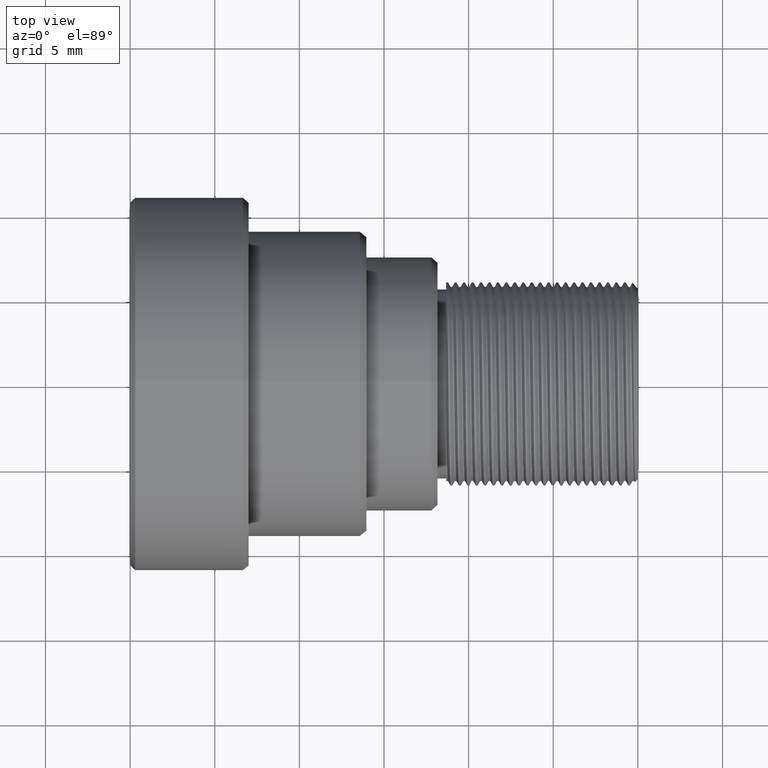
[diagram: clean part render]
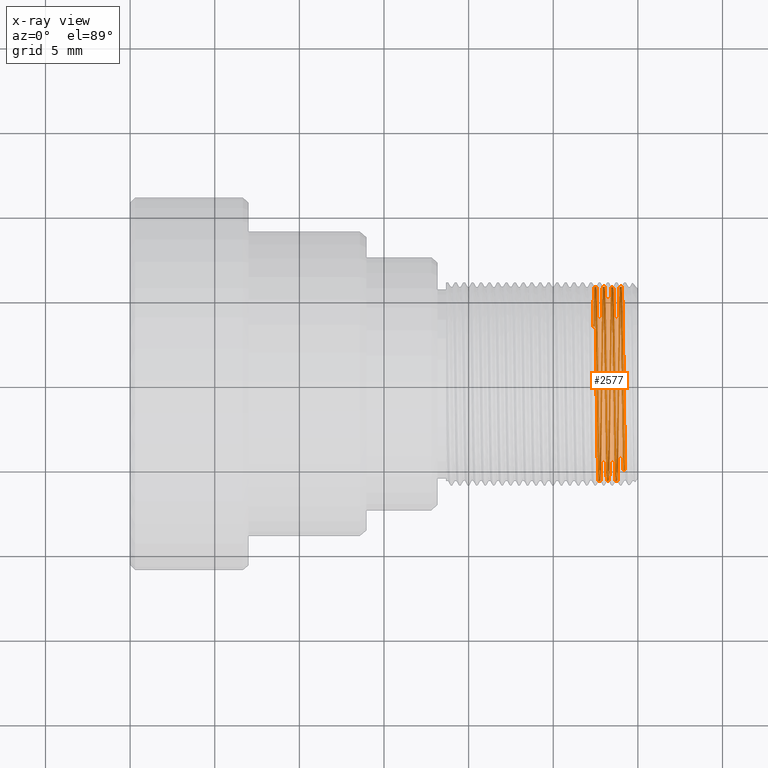
[diagram: x-ray — body ghosted, one internal face saturated and labeled with its STEP entity id]
A machine part, top view, then the same camera in x-ray: the body is ghosted and one INTERNAL B-rep face — a face not visible from any outside direction — is saturated and labeled: STEP entity #2577.
In plain terms, the highlighted face is a freeform B-spline surface patch.
Its self-contained STEP definition (entity closure, byte-faithful):
#22 = CARTESIAN_POINT ( 'NONE',  ( -1.393640370808000073, 5.622570896759000014, 1.682700512613999999 ) ) ;
#71 = CARTESIAN_POINT ( 'NONE',  ( -1.123047520445999981, 3.719522578722000095, -4.539816768457000329 ) ) ;
#114 = CARTESIAN_POINT ( 'NONE',  ( -1.706867475565299497, -5.804227592281000270, -0.8693253483180001240 ) ) ;
#115 = CARTESIAN_POINT ( 'NONE',  ( -1.955170055229999759, 5.468814845048000528, 2.129987956493999857 ) ) ;
#161 = CARTESIAN_POINT ( 'NONE',  ( -2.026246109133299278, 4.400040909953999879, -3.883867208719999908 ) ) ;
#162 = CARTESIAN_POINT ( 'NONE',  ( -2.448755216198000628, 5.279540565673999986, 2.563441831105000013 ) ) ;
#213 = CARTESIAN_POINT ( 'NONE',  ( -1.764936318031875118, -4.905808124757999877, 3.221464130994999842 ) ) ;
#214 = CARTESIAN_POINT ( 'NONE',  ( -2.477789637432000092, 5.846690975538000323, 0.5108780808056000433 ) ) ;
#260 = CARTESIAN_POINT ( 'NONE',  ( -2.055280530366444314, 2.724580928635999655, -5.198215392568999782 ) ) ;
#261 = CARTESIAN_POINT ( 'NONE',  ( -1.519653736728000082, 5.312649827899999622, -2.494100300777000179 ) ) ;
#307 = CARTESIAN_POINT ( 'NONE',  ( -1.010041365961258153, 5.094563060150999689, -2.913796789254000430 ) ) ;
#309 = CARTESIAN_POINT ( 'NONE',  ( -1.045819937732000104, 3.461940887852000603, 4.739171891942000059 ) ) ;
#322 = CARTESIAN_POINT ( 'NONE',  ( -0.9871584735384000275, 3.719522578722000095, -4.539816768457000329 ) ) ;
#359 = CARTESIAN_POINT ( 'NONE',  ( -1.616632681415000272, 4.073008135019001053, -4.225563777330999748 ) ) ;
#407 = CARTESIAN_POINT ( 'NONE',  ( -2.545734160884999930, 5.846690975538000323, 0.5108780808056000433 ) ) ;
#444 = VERTEX_POINT ( 'NONE', #4862 ) ;
#453 = CARTESIAN_POINT ( 'NONE',  ( -2.139252263617999805, 2.724580928636000099, -5.198215392568999782 ) ) ;
#496 = CARTESIAN_POINT ( 'NONE',  ( -2.184313894648409526, 0.6904281739478000945, -5.828215287792001043 ) ) ;
#498 = CARTESIAN_POINT ( 'NONE',  ( -1.500494996480999932, 4.652048971314999726, 3.578159425278999883 ) ) ;
#511 = CARTESIAN_POINT ( 'NONE',  ( -0.8129519461373000411, 1.543045258775000095, 5.662490082588999663 ) ) ;
#543 = CARTESIAN_POINT ( 'NONE',  ( -2.387554843282409411, -3.805546967878000952, 4.467952190680000157 ) ) ;
#545 = CARTESIAN_POINT ( 'NONE',  ( -2.003955838437000203, 0.6140636788212000541, 5.836755117579000007 ) ) ;
#558 = CARTESIAN_POINT ( 'NONE',  ( -1.364605949573999943, 4.652048971314999726, 3.578159425278999883 ) ) ;
#592 = CARTESIAN_POINT ( 'NONE',  ( -1.603625469978978924, 5.312649827899999622, -2.494100300777000179 ) ) ;
#607 = CARTESIAN_POINT ( 'NONE',  ( -1.596881319441999958, -3.746724585897000193, -4.517392985080999956 ) ) ;
#641 = CARTESIAN_POINT ( 'NONE',  ( -1.313281257643995170, -5.855380892527000114, -0.3991229229976000492 ) ) ;
#643 = CARTESIAN_POINT ( 'NONE',  ( -1.278095307599999897, -2.329551258181000062, -5.386833526268000050 ) ) ;
#655 = CARTESIAN_POINT ( 'NONE',  ( -0.9810069447276528187, 5.798901146949000385, -0.9041736523316999952 ) ) ;
#656 = CARTESIAN_POINT ( 'NONE',  ( -2.380810692744999901, 5.279540565673999986, 2.563441831105000013 ) ) ;
#691 = CARTESIAN_POINT ( 'NONE',  ( -2.532726949449409570, 5.279540565673999986, 2.563441831105000013 ) ) ;
#693 = CARTESIAN_POINT ( 'NONE',  ( -1.800714889803000096, -3.746724585897000193, -4.517392985080999956 ) ) ;
#704 = CARTESIAN_POINT ( 'NONE',  ( -2.119500901643999846, -4.863210958947999707, -3.285416818758999824 ) ) ;
#750 = CARTESIAN_POINT ( 'NONE',  ( -1.200275103160000079, -5.327535184241000366, -2.462144058519999845 ) ) ;
#796 = CARTESIAN_POINT ( 'NONE',  ( -0.8617377293440999786, -4.325063013458000150, 3.967200824738999820 ) ) ;
#800 = ORIENTED_EDGE ( 'NONE', *, *, #1508, .T. ) ;
#842 = CARTESIAN_POINT ( 'NONE',  ( -0.8648692597935253579, 1.543045258775000095, 5.662490082588999663 ) ) ;
#843 = CARTESIAN_POINT ( 'NONE',  ( -1.548688157961999989, 4.073008135019001053, -4.225563777330999748 ) ) ;
#890 = CARTESIAN_POINT ( 'NONE',  ( -2.534720364570382856, 3.890867311527279160, -4.253844025720928457 ) ) ;
#891 = CARTESIAN_POINT ( 'NONE',  ( -2.013238897697000152, 5.496232769577000354, -2.058205491894999906 ) ) ;
#941 = CARTESIAN_POINT ( 'NONE',  ( -1.329419999529858787, -1.047400271050999976, 5.774749966573000215 ) ) ;
#942 = CARTESIAN_POINT ( 'NONE',  ( -2.332617531264999933, -1.960808875505000159, 5.531727854785000176 ) ) ;
#986 = CARTESIAN_POINT ( 'NONE',  ( -1.561695369397444910, 2.297152388610999907, -5.400729155190999720 ) ) ;
#987 = CARTESIAN_POINT ( 'NONE',  ( -2.593927322364999899, 1.132099616667000097, -5.627446934828999936 ) ) ;
#1033 = CARTESIAN_POINT ( 'NONE',  ( -1.068110208428299623, 1.854804637051000071, -5.568167046921000285 ) ) ;
#1034 = CARTESIAN_POINT ( 'NONE',  ( -1.442426154013999984, 1.082068299821999924, 5.768354418613999890 ) ) ;
#1058 = CARTESIAN_POINT ( 'NONE',  ( -0.9067993603749382459, -2.624806938044000226, 5.249299836169000422 ) ) ;
#1082 = CARTESIAN_POINT ( 'NONE',  ( -1.384357311547000036, -3.038977944977999890, 5.020896090755999630 ) ) ;
#1095 = CARTESIAN_POINT ( 'NONE',  ( -0.6677798399697001397, -5.739740115829000011, 0.07205518104428000614 ) ) ;
#1130 = CARTESIAN_POINT ( 'NONE',  ( -2.226355527317999794, -3.370799333112000085, -4.804424664841000059 ) ) ;
#1175 = CARTESIAN_POINT ( 'NONE',  ( -2.371527633484999953, -3.805546967878000508, 4.467952190680000157 ) ) ;
#1220 = CARTESIAN_POINT ( 'NONE',  ( -1.893969682313979108, -3.433411868794999933, 4.759881032488999963 ) ) ;
#1222 = CARTESIAN_POINT ( 'NONE',  ( -2.574768582118999838, 5.644117296313999610, -1.608943808054000169 ) ) ;
#1233 = CARTESIAN_POINT ( 'NONE',  ( -0.6968142612033000338, -5.455922493532000317, 2.162766404199000014 ) ) ;
#1266 = CARTESIAN_POINT ( 'NONE',  ( -1.661694312445978650, 2.297152388610999907, -5.400729155190998831 ) ) ;
#1268 = CARTESIAN_POINT ( 'NONE',  ( -1.771680468569000189, -1.888217228073999943, -5.556925427232999759 ) ) ;
#1281 = CARTESIAN_POINT ( 'NONE',  ( -2.438879535212000071, 5.644117296313999610, -1.608943808054000169 ) ) ;
#1315 = CARTESIAN_POINT ( 'NONE',  ( -1.864935261080409523, -4.905808124757999877, 3.221464130994999842 ) ) ;
#1317 = CARTESIAN_POINT ( 'NONE',  ( -2.700781948038999847, 3.134282485578000266, -4.961947407538000121 ) ) ;
#1330 = CARTESIAN_POINT ( 'NONE',  ( -0.8228276271240000384, -2.624806938044000226, 5.249299836169000422 ) ) ;
#1364 = CARTESIAN_POINT ( 'NONE',  ( -1.458453363811554437, 1.082068299821999924, 5.768354418613999890 ) ) ;
#1366 = CARTESIAN_POINT ( 'NONE',  ( -1.394232992534000015, -5.612362065500000163, 1.716442993507999892 ) ) ;
#1378 = CARTESIAN_POINT ( 'NONE',  ( -1.538812476975000010, 0.2188751018982000029, -5.864885181654999613 ) ) ;
#1413 = CARTESIAN_POINT ( 'NONE',  ( -2.039141788481408923, 5.468814845048000528, 2.129987956493999857 ) ) ;
#1415 = CARTESIAN_POINT ( 'NONE',  ( -1.307129728832999938, -4.098316156345999772, -4.201022397804999642 ) ) ;
#1426 = CARTESIAN_POINT ( 'NONE',  ( -0.9389653120580000456, 4.925069843148000004, 3.191938512299000053 ) ) ;
#1462 = CARTESIAN_POINT ( 'NONE',  ( -2.671747526806000028, 4.698505451484000339, -3.516944551252000561 ) ) ;
#1473 = CARTESIAN_POINT ( 'NONE',  ( -0.7553575259468794378, -5.138700329564384717, 2.556266124406745721 ) ) ;
#1474 = CARTESIAN_POINT ( 'NONE',  ( -1.335571528340999903, 3.069081906205000543, 5.002551424745999675 ) ) ;
#1508 = EDGE_CURVE ( 'NONE', #1706, #3772, #2639, .T. ) ;
#1522 = CARTESIAN_POINT ( 'NONE',  ( -2.419720794964999921, 4.017336318637999781, 4.278527063759000271 ) ) ;
#1566 = CARTESIAN_POINT ( 'NONE',  ( -1.210150784145999969, -2.329551258181000062, -5.386833526268000050 ) ) ;
#1589 = CARTESIAN_POINT ( 'NONE',  ( -0.8555804595323310835, -5.138736985792783152, 2.556280895141534337 ) ) ;
#1613 = CARTESIAN_POINT ( 'NONE',  ( -1.300385578296299638, -3.038977944977999890, 5.020896090755999630 ) ) ;
#1615 = CARTESIAN_POINT ( 'NONE',  ( -2.071307740163999878, 2.724580928636000099, -5.198215392568999782 ) ) ;
#1640 = CARTESIAN_POINT ( 'NONE',  ( -0.8628758446721991326, -4.899922616385111063, 3.037234891230111256 ) ) ;
#1663 = CARTESIAN_POINT ( 'NONE',  ( -1.416523263230299756, 4.652048971314999726, 3.578159425278999883 ) ) ;
#1664 = CARTESIAN_POINT ( 'NONE',  ( -2.245514267564999944, -5.815111671174999941, 0.7932595765701999646 ) ) ;
#1706 = VERTEX_POINT ( 'NONE', #2751 ) ;
#1713 = CARTESIAN_POINT ( 'NONE',  ( -2.316590321467299596, -1.960808875505000159, 5.531727854785000176 ) ) ;
#1714 = CARTESIAN_POINT ( 'NONE',  ( -0.8907721505775999526, -2.624806938044000226, 5.249299836169000422 ) ) ;
#1761 = CARTESIAN_POINT ( 'NONE',  ( -2.345624742700875842, 0.1420709294929000110, 5.867248108233000359 ) ) ;
#1762 = CARTESIAN_POINT ( 'NONE',  ( -1.413391732780999943, -1.047400271050999976, 5.774749966573000215 ) ) ;
#1811 = CARTESIAN_POINT ( 'NONE',  ( -1.965045736216999961, 2.656290297955000046, 5.233441158284001027 ) ) ;
#1824 = CARTESIAN_POINT ( 'NONE',  ( -1.248468264640000047, -3.038977944977999890, 5.020896090755999630 ) ) ;
#1857 = CARTESIAN_POINT ( 'NONE',  ( -1.161957622666000001, 5.094563060150999689, -2.913796789253999986 ) ) ;
#1906 = CARTESIAN_POINT ( 'NONE',  ( -2.023114578683999909, 5.468814845048000528, 2.129987956493999857 ) ) ;
#1950 = CARTESIAN_POINT ( 'NONE',  ( -2.445623685749409137, 0.1420709294929000110, 5.867248108233001247 ) ) ;
#1952 = CARTESIAN_POINT ( 'NONE',  ( -1.016785516497999975, 1.543045258775000095, 5.662490082588999663 ) ) ;
#1994 = CARTESIAN_POINT ( 'NONE',  ( -1.081005887776000263, 5.798901146949000385, -0.9041736523316999952 ) ) ;
#1996 = CARTESIAN_POINT ( 'NONE',  ( -2.323334472004999984, -4.863210958947999707, -3.285416818758999824 ) ) ;
#2008 = CARTESIAN_POINT ( 'NONE',  ( -2.206604165343999835, -5.149282437005999746, 2.815967842276999811 ) ) ;
#2045 = CARTESIAN_POINT ( 'NONE',  ( -2.213348315881979111, -1.434619879141999954, -5.690927016454001119 ) ) ;
#2047 = CARTESIAN_POINT ( 'NONE',  ( -2.497540999406000051, 0.1420709294929000110, 5.867248108233000359 ) ) ;
#2052 = EDGE_LOOP ( 'NONE', ( #6638, #800, #4177, #2199 ) ) ;
#2060 = CARTESIAN_POINT ( 'NONE',  ( -2.496948377678000153, 3.134282485578000266, -4.961947407538000121 ) ) ;
#2096 = CARTESIAN_POINT ( 'NONE',  ( -2.634719307754191941, 3.890867304565183815, -4.253844032709098499 ) ) ;
#2098 = CARTESIAN_POINT ( 'NONE',  ( -2.468506578172000587, -1.960808875505000159, 5.531727854785000176 ) ) ;
#2111 = CARTESIAN_POINT ( 'NONE',  ( -1.422674792040999892, 5.852877867591000260, -0.4342869688220000191 ) ) ;
#2145 = CARTESIAN_POINT ( 'NONE',  ( -0.9648682028418565926, 1.543045258775000095, 5.662490082588999663 ) ) ;
#2147 = CARTESIAN_POINT ( 'NONE',  ( -1.539405098700999952, 3.069081906205000543, 5.002551424745999675 ) ) ;
#2160 = CARTESIAN_POINT ( 'NONE',  ( -1.084137418225999960, 1.854804637051000071, -5.568167046921000285 ) ) ;
#2195 = CARTESIAN_POINT ( 'NONE',  ( -1.858783732270000044, -5.804227592281000270, -0.8693253483180000130 ) ) ;
#2199 = ORIENTED_EDGE ( 'NONE', *, *, #4108, .T. ) ;
#2208 = CARTESIAN_POINT ( 'NONE',  ( -0.9679997332916000508, 5.739810292121999780, 1.224484513178000000 ) ) ;
#2253 = CARTESIAN_POINT ( 'NONE',  ( -0.7628769016237695322, -4.899922616385110175, 3.037234891230111256 ) ) ;
#2254 = CARTESIAN_POINT ( 'NONE',  ( -1.432550473028000093, 4.652048971314999726, 3.578159425278999883 ) ) ;
#2302 = CARTESIAN_POINT ( 'NONE',  ( -1.152081941679000021, 1.854804637051000071, -5.568167046921000285 ) ) ;
#2348 = CARTESIAN_POINT ( 'NONE',  ( -2.374659163934299766, 2.226246989797000086, 5.430341496316000161 ) ) ;
#2349 = CARTESIAN_POINT ( 'NONE',  ( -1.984204476464000111, 5.868842167586000969, 0.03842025770823000175 ) ) ;
#2400 = CARTESIAN_POINT ( 'NONE',  ( -1.213282314595858669, -5.855380892527000114, -0.3991229229976000492 ) ) ;
#2401 = CARTESIAN_POINT ( 'NONE',  ( -1.374481630560999923, 1.082068299821999924, 5.768354418613999890 ) ) ;
#2446 = CARTESIAN_POINT ( 'NONE',  ( -1.387488841996858291, 3.069081906205000543, 5.002551424745999675 ) ) ;
#2447 = CARTESIAN_POINT ( 'NONE',  ( -0.8036688868771000305, -5.739740115829000011, 0.07205518104428000614 ) ) ;
#2495 = CARTESIAN_POINT ( 'NONE',  ( -1.039075787194610356, 3.719522578722000095, -4.539816768457000329 ) ) ;
#2496 = CARTESIAN_POINT ( 'NONE',  ( -1.326288469080000310, -5.612362065500000163, 1.716442993507999892 ) ) ;
#2541 = CARTESIAN_POINT ( 'NONE',  ( -1.997211687899444810, 5.496232769577000354, -2.058205491894999906 ) ) ;
#2542 = CARTESIAN_POINT ( 'NONE',  ( -1.848908051283000065, -4.905808124757999877, 3.221464130994999842 ) ) ;
#2554 = CARTESIAN_POINT ( 'NONE',  ( -1.132330579705999929, -5.327535184241000366, -2.462144058519999845 ) ) ;
#2577 = ADVANCED_FACE ( 'NONE', ( #4927 ), #6245, .F. ) ;
#2589 = CARTESIAN_POINT ( 'NONE',  ( -2.632837424586000008, 3.134282485578000266, -4.961947407538000121 ) ) ;
#2634 = CARTESIAN_POINT ( 'NONE',  ( -2.255389948551000057, -4.863210958947999707, -3.285416818758999824 ) ) ;
#2639 = B_SPLINE_CURVE_WITH_KNOTS ( 'NONE', 3,
 ( #5007, #2096, #5833, #8758, #7931, #691, #3538, #6469, #1950, #7202, #543, #3588, #4170, #7983, #9435, #8032, #2045, #496, #4320, #5684, #8708, #4912, #1413, #4220, #7154, #8656, #5055, #1220, #1315, #4269, #3489, #3637, #2773, #5735, #7251, #1266, #6620, #592, #5785, #9582, #6520, #9484, #1364, #2822, #6571, #7300, #3047, #641, #5102, #3443, #6422, #8081, #9534, #9387, #4958, #1994, #2870, #8806, #4370, #2145, #7349, #1058, #6990, #1640, #1589 ),
 .UNSPECIFIED., .F., .F.,
 ( 4, 1, 1, 1, 1, 1, 1, 1, 1, 1, 1, 1, 1, 1, 1, 1, 1, 1, 1, 1, 1, 1, 1, 1, 1, 1, 1, 1, 1, 1, 1, 1, 1, 1, 1, 1, 1, 1, 1, 1, 1, 1, 1, 1, 1, 1, 1, 1, 1, 1, 1, 1, 1, 1, 1, 1, 1, 1, 1, 1, 1, 1, 4 ),
 ( 0.000000000000000000, 0.01249971172903806618, 0.02874972133996863202, 0.04499973095089920133, 0.06124974056182976717, 0.07749975017276045097, 0.09374975978369101681, 0.1099997693946215827, 0.1262497790055521485, 0.1424997886164827143, 0.1587497982274132802, 0.1749998078383438460, 0.1912498174492744119, 0.2074998270602050887, 0.2237498366711356546, 0.2399998462820662204, 0.2562498558929968140, 0.2724998655039273521, 0.2887498751148579457, 0.3049998847257884838, 0.3212498943367190773, 0.3374999039476497265, 0.3537499135584802890, 0.3699999231694108270, 0.3862499327803414206, 0.4024999423912719587, 0.4187499520022025523, 0.4349999616131332014, 0.4512499712240637950, 0.4674999808349943886, 0.4837499904459249267, 0.5000000000568555203, 0.5162500096677861139, 0.5325000192787165965, 0.5487500288896471901, 0.5650000385005778947, 0.5812500481115083772, 0.5975000577224389708, 0.6137500673333695644, 0.6300000769443001580, 0.6462500865552307516, 0.6625000961661612342, 0.6787501057770919388, 0.6950001153880224214, 0.7112501249989531260, 0.7275001346098834976, 0.7437501442208142022, 0.7600001538317447958, 0.7762501634426753894, 0.7925001730536059830, 0.8087501826645364655, 0.8250001922754671702, 0.8412502018863976527, 0.8575002114973283573, 0.8737502211082588399, 0.8900002307191894335, 0.9062502403301200271, 0.9225002499410506207, 0.9387502595519811033, 0.9550002691629116969, 0.9712502787738422905, 0.9875002883847729951, 1.000000000000000000 ),
 .UNSPECIFIED. ) ;
#2682 = CARTESIAN_POINT ( 'NONE',  ( -0.8716134103307000558, -5.739740115829000011, 0.07205518104428000614 ) ) ;
#2726 = CARTESIAN_POINT ( 'NONE',  ( -2.032990259671000111, 2.656290297955000046, 5.233441158284001027 ) ) ;
#2737 = CARTESIAN_POINT ( 'NONE',  ( -0.9290896310713999684, 5.798901146949000385, -0.9041736523316999952 ) ) ;
#2751 = CARTESIAN_POINT ( 'NONE',  ( -2.642195286700499857, 3.462764313516616621, -4.577997362663629666 ) ) ;
#2773 = CARTESIAN_POINT ( 'NONE',  ( -1.748797576146554622, -3.746724585897000193, -4.517392985080999956 ) ) ;
#2775 = CARTESIAN_POINT ( 'NONE',  ( -1.829749311035999915, -5.111973322315000345, -2.883142947576999848 ) ) ;
#2786 = CARTESIAN_POINT ( 'NONE',  ( -2.293707429044999913, 0.1420709294929000110, 5.867248108233000359 ) ) ;
#2822 = CARTESIAN_POINT ( 'NONE',  ( -1.429418942577995066, -1.047400271050999976, 5.774749966573000215 ) ) ;
#2824 = CARTESIAN_POINT ( 'NONE',  ( -1.945886995970000033, -3.433411868794999933, 4.759881032488999963 ) ) ;
#2835 = CARTESIAN_POINT ( 'NONE',  ( -0.8358348385600157249, -0.5789932257633999546, 5.840338913231000184 ) ) ;
#2836 = CARTESIAN_POINT ( 'NONE',  ( -1.887225531776999921, 5.468814845048000528, 2.129987956493999857 ) ) ;
#2870 = CARTESIAN_POINT ( 'NONE',  ( -1.051971466542494849, 5.739810292121999780, 1.224484513178000000 ) ) ;
#2872 = CARTESIAN_POINT ( 'NONE',  ( -1.916852574736999992, -4.905808124757999877, 3.221464130994999842 ) ) ;
#2883 = CARTESIAN_POINT ( 'NONE',  ( -0.9099308908244999605, 3.461940887852000603, 4.739171891942000059 ) ) ;
#2917 = CARTESIAN_POINT ( 'NONE',  ( -1.336164150067000067, -5.327535184241000366, -2.462144058519999845 ) ) ;
#2930 = CARTESIAN_POINT ( 'NONE',  ( -2.003363216709999950, 2.724580928636000099, -5.198215392568999782 ) ) ;
#2978 = CARTESIAN_POINT ( 'NONE',  ( -1.771087846843000024, -1.509004805446999997, 5.671656636413000108 ) ) ;
#3024 = CARTESIAN_POINT ( 'NONE',  ( -1.064978677979000032, 5.798901146949000385, -0.9041736523316999952 ) ) ;
#3047 = CARTESIAN_POINT ( 'NONE',  ( -1.342315678877554541, -5.612362065500000163, 1.716442993507999670 ) ) ;
#3070 = CARTESIAN_POINT ( 'NONE',  ( -1.590729790631299601, 0.2188751018982000029, -5.864885181654999613 ) ) ;
#3071 = CARTESIAN_POINT ( 'NONE',  ( -2.129376582631000048, -1.434619879141999954, -5.690927016454000231 ) ) ;
#3097 = LINE ( 'NONE', #3870, #4677 ) ;
#3118 = CARTESIAN_POINT ( 'NONE',  ( -1.184247893362299520, -5.327535184241000366, -2.462144058519999845 ) ) ;
#3119 = CARTESIAN_POINT ( 'NONE',  ( -1.461584894261000134, 5.622570896759000014, 1.682700512613999999 ) ) ;
#3168 = CARTESIAN_POINT ( 'NONE',  ( -1.358454420763299364, 1.082068299821999924, 5.768354418613999890 ) ) ;
#3169 = CARTESIAN_POINT ( 'NONE',  ( -2.506824058664999910, 5.644117296313999610, -1.608943808054000169 ) ) ;
#3214 = CARTESIAN_POINT ( 'NONE',  ( -2.517597676924762773, 4.771250561410054658, -3.370163687029762656 ) ) ;
#3216 = CARTESIAN_POINT ( 'NONE',  ( -0.9778754142782001280, 3.461940887852000603, 4.739171891942000059 ) ) ;
#3261 = CARTESIAN_POINT ( 'NONE',  ( -1.939142845432874962, 5.468814845048000528, 2.129987956493999857 ) ) ;
#3262 = CARTESIAN_POINT ( 'NONE',  ( -2.661871845818999827, 1.132099616667000097, -5.627446934828999936 ) ) ;
#3274 = CARTESIAN_POINT ( 'NONE',  ( -1.103296158472000021, -4.098316156345999772, -4.201022397804999642 ) ) ;
#3310 = CARTESIAN_POINT ( 'NONE',  ( -1.994080157450000224, 4.348814647710000258, 3.941141416404000175 ) ) ;
#3355 = CARTESIAN_POINT ( 'NONE',  ( -2.313458791017999783, -5.815111671174999941, 0.7932595765701999646 ) ) ;
#3401 = CARTESIAN_POINT ( 'NONE',  ( -0.8812915507419001315, -5.730976829613999790, 0.7701172039435000283 ) ) ;
#3443 = CARTESIAN_POINT ( 'NONE',  ( -1.255212415176978791, -4.098316156345999772, -4.201022397804999642 ) ) ;
#3445 = CARTESIAN_POINT ( 'NONE',  ( -2.062024680903999929, 4.348814647710000258, 3.941141416404000175 ) ) ;
#3458 = CARTESIAN_POINT ( 'NONE',  ( -0.8419863673709000462, 3.461940887852000603, 4.739171891942000059 ) ) ;
#3489 = CARTESIAN_POINT ( 'NONE',  ( -1.806866418613554570, -5.804227592281000270, -0.8693253483180000130 ) ) ;
#3491 = CARTESIAN_POINT ( 'NONE',  ( -2.352368893237999803, -5.715377838152000400, -1.333881805651000008 ) ) ;
#3504 = CARTESIAN_POINT ( 'NONE',  ( -2.235638586578000631, -3.805546967878000508, 4.467952190680000157 ) ) ;
#3538 = CARTESIAN_POINT ( 'NONE',  ( -2.503692528215978985, 4.017336318637999781, 4.278527063759000271 ) ) ;
#3552 = CARTESIAN_POINT ( 'NONE',  ( -1.683984583141999947, -5.732351690717999659, 1.258939473584000046 ) ) ;
#3557 = CARTESIAN_POINT ( 'NONE',  ( -0.7887653354053183463, -5.139282362589962183, 2.556553149659978263 ) ) ;
#3588 = CARTESIAN_POINT ( 'NONE',  ( -2.358520422048979270, -5.149282437005999746, 2.815967842276999811 ) ) ;
#3590 = CARTESIAN_POINT ( 'NONE',  ( -2.178162365838000269, 4.400040909953999879, -3.883867208719999908 ) ) ;
#3602 = CARTESIAN_POINT ( 'NONE',  ( -1.974328795476999909, 4.400040909953999879, -3.883867208719999908 ) ) ;
#3637 = CARTESIAN_POINT ( 'NONE',  ( -1.777831997379978990, -5.111973322315000345, -2.883142947576999404 ) ) ;
#3650 = CARTESIAN_POINT ( 'NONE',  ( -2.061432059177000120, -1.434619879141999954, -5.690927016454000231 ) ) ;
#3698 = CARTESIAN_POINT ( 'NONE',  ( -1.229309524392999897, -5.855380892527000114, -0.3991229229976000492 ) ) ;
#3746 = CARTESIAN_POINT ( 'NONE',  ( -1.006909835512000084, 4.925069843148000004, 3.191938512299000053 ) ) ;
#3772 = VERTEX_POINT ( 'NONE', #8578 ) ;
#3792 = CARTESIAN_POINT ( 'NONE',  ( -2.200452636533444917, -5.715377838152000400, -1.333881805651000008 ) ) ;
#3793 = CARTESIAN_POINT ( 'NONE',  ( -1.839032370296000085, -1.509004805446999997, 5.671656636413000108 ) ) ;
#3841 = CARTESIAN_POINT ( 'NONE',  ( -1.503626526930444740, 5.312649827899999622, -2.494100300777000179 ) ) ;
#3842 = CARTESIAN_POINT ( 'NONE',  ( -2.187445425098000218, -4.863210958947999707, -3.285416818758999824 ) ) ;
#3870 = CARTESIAN_POINT ( 'NONE',  ( -2.592164383329332633, 3.462731931933902274, -4.577955305267756181 ) ) ;
#3893 = CARTESIAN_POINT ( 'NONE',  ( -1.287378366860000067, -4.630472282846000098, 3.606038122653000055 ) ) ;
#3940 = CARTESIAN_POINT ( 'NONE',  ( -1.852039581732444651, 0.6140636788212000541, 5.836755117579000007 ) ) ;
#3941 = CARTESIAN_POINT ( 'NONE',  ( -1.490619315495000041, 5.852877867591000260, -0.4342869688220000191 ) ) ;
#3984 = CARTESIAN_POINT ( 'NONE',  ( -1.823005160498875066, -1.509004805446999997, 5.671656636413000108 ) ) ;
#3985 = CARTESIAN_POINT ( 'NONE',  ( -2.603803003352000101, 4.698505451484000339, -3.516944551252000561 ) ) ;
#4032 = CARTESIAN_POINT ( 'NONE',  ( -1.471460575248000113, 3.069081906205000543, 5.002551424745999675 ) ) ;
#4045 = CARTESIAN_POINT ( 'NONE',  ( -0.7258486824368001189, -4.325063013458000150, 3.967200824738999820 ) ) ;
#4081 = CARTESIAN_POINT ( 'NONE',  ( -1.190992043899000041, 3.719522578722000095, -4.539816768457000329 ) ) ;
#4108 = EDGE_CURVE ( 'NONE', #8182, #444, #5630, .T. ) ;
#4127 = CARTESIAN_POINT ( 'NONE',  ( -1.819873630050000024, -5.732351690717999659, 1.258939473584000046 ) ) ;
#4170 = CARTESIAN_POINT ( 'NONE',  ( -2.329486000815554458, -5.815111671174999941, 0.7932595765701999646 ) ) ;
#4172 = CARTESIAN_POINT ( 'NONE',  ( -0.9296822527978000350, -4.325063013458000150, 3.967200824738999820 ) ) ;
#4177 = ORIENTED_EDGE ( 'NONE', *, *, #5245, .T. ) ;
#4220 = CARTESIAN_POINT ( 'NONE',  ( -2.010107367247554233, 4.348814647710000258, 3.941141416404000175 ) ) ;
#4234 = CARTESIAN_POINT ( 'NONE',  ( -2.525982798912000504, 1.132099616667000097, -5.627446934828999936 ) ) ;
#4269 = CARTESIAN_POINT ( 'NONE',  ( -1.835900839846979160, -5.732351690717999659, 1.258939473584000046 ) ) ;
#4271 = CARTESIAN_POINT ( 'NONE',  ( -2.120093523371000099, 5.868842167586000969, 0.03842025770828000342 ) ) ;
#4285 = CARTESIAN_POINT ( 'NONE',  ( -1.742053425608999895, -3.433411868794999933, 4.759881032488999963 ) ) ;
#4320 = CARTESIAN_POINT ( 'NONE',  ( -2.155279473414978497, 2.724580928636000099, -5.198215392568999782 ) ) ;
#4322 = CARTESIAN_POINT ( 'NONE',  ( -1.510370677467999911, 1.082068299821999924, 5.768354418613999890 ) ) ;
#4333 = CARTESIAN_POINT ( 'NONE',  ( -0.9519725234940884517, 5.739810292121999780, 1.224484513178000000 ) ) ;
#4334 = CARTESIAN_POINT ( 'NONE',  ( -1.567846898208000050, -1.888217228073999943, -5.556925427232999759 ) ) ;
#4370 = CARTESIAN_POINT ( 'NONE',  ( -0.9939026240755649555, 3.461940887852000603, 4.739171891942000059 ) ) ;
#4372 = CARTESIAN_POINT ( 'NONE',  ( -2.207196787071000088, 2.724580928636000099, -5.198215392568999782 ) ) ;
#4384 = CARTESIAN_POINT ( 'NONE',  ( -1.277502685873999955, -1.047400271050999976, 5.774749966573000215 ) ) ;
#4421 = CARTESIAN_POINT ( 'NONE',  ( -1.742646047335999926, 0.2188751018982000029, -5.864885181654999613 ) ) ;
#4432 = CARTESIAN_POINT ( 'NONE',  ( -2.032397637943999857, 0.6904281739478000945, -5.828215287792001043 ) ) ;
#4478 = CARTESIAN_POINT ( 'NONE',  ( -1.577722579195000030, 2.297152388610999907, -5.400729155190999720 ) ) ;
#4483 = CARTESIAN_POINT ( 'NONE',  ( -0.8555804595323310835, -5.138736985792783152, 2.556280895141534337 ) ) ;
#4526 = CARTESIAN_POINT ( 'NONE',  ( -1.345447209327000015, -1.047400271050999976, 5.774749966573000215 ) ) ;
#4572 = CARTESIAN_POINT ( 'NONE',  ( -1.910108424199299604, 4.348814647710000258, 3.941141416404000175 ) ) ;
#4573 = CARTESIAN_POINT ( 'NONE',  ( -1.722894685363000056, -5.804227592281000270, -0.8693253483180000130 ) ) ;
#4621 = CARTESIAN_POINT ( 'NONE',  ( -1.474592105697299482, 5.852877867591000260, -0.4342869688220000191 ) ) ;
#4622 = CARTESIAN_POINT ( 'NONE',  ( -2.274548688798000207, -5.149282437005999746, 2.815967842276999811 ) ) ;
#4671 = CARTESIAN_POINT ( 'NONE',  ( -2.542134405216384341, 3.462763606985000742, -4.577997801655666166 ) ) ;
#4672 = CARTESIAN_POINT ( 'NONE',  ( -0.9198065718111001488, -0.5789932257633999546, 5.840338913231000184 ) ) ;
#4677 = VECTOR ( 'NONE', #6064, 1000.000000000000000 ) ;
#4725 = CARTESIAN_POINT ( 'NONE',  ( -2.197321106084999975, -1.434619879141999954, -5.690927016454000231 ) ) ;
#4737 = CARTESIAN_POINT ( 'NONE',  ( -1.045227316005000073, -0.2540994883862999765, -5.863464671530000949 ) ) ;
#4771 = CARTESIAN_POINT ( 'NONE',  ( -1.297254047847000047, -5.855380892527000114, -0.3991229229976000492 ) ) ;
#4820 = CARTESIAN_POINT ( 'NONE',  ( -1.703735945115999906, -1.888217228073999943, -5.556925427232999759 ) ) ;
#4862 = CARTESIAN_POINT ( 'NONE',  ( -2.542134405216384341, 3.462763606985000742, -4.577997801655666166 ) ) ;
#4869 = CARTESIAN_POINT ( 'NONE',  ( -2.284424369784999964, -5.715377838152000400, -1.333881805651000008 ) ) ;
#4912 = CARTESIAN_POINT ( 'NONE',  ( -2.068176209714554403, 5.868842167586000969, 0.03842025770827191961 ) ) ;
#4914 = CARTESIAN_POINT ( 'NONE',  ( -1.239185205380000099, -4.098316156345999772, -4.201022397804999642 ) ) ;
#4927 = FACE_OUTER_BOUND ( 'NONE', #2052, .T. ) ;
#4958 = CARTESIAN_POINT ( 'NONE',  ( -1.110040309009552972, 5.094563060150999689, -2.913796789254000430 ) ) ;
#4972 = CARTESIAN_POINT ( 'NONE',  ( -1.509778055741000102, 2.297152388610999907, -5.400729155190999720 ) ) ;
#5007 = CARTESIAN_POINT ( 'NONE',  ( -2.642195286700499857, 3.462764313516616621, -4.577997362663629666 ) ) ;
#5009 = CARTESIAN_POINT ( 'NONE',  ( -2.555609841872000132, 4.017336318637999781, 4.278527063759000271 ) ) ;
#5021 = CARTESIAN_POINT ( 'NONE',  ( -0.7647587846568999481, -5.455922493532000317, 2.162766404199000014 ) ) ;
#5055 = CARTESIAN_POINT ( 'NONE',  ( -1.923004103547409249, -1.509004805446999997, 5.671656636413000108 ) ) ;
#5057 = CARTESIAN_POINT ( 'NONE',  ( -1.220026465132999949, 1.854804637051000071, -5.568167046921000285 ) ) ;
#5070 = CARTESIAN_POINT ( 'NONE',  ( -0.7357243634233999741, -5.739740115829000011, 0.07205518104428000614 ) ) ;
#5102 = CARTESIAN_POINT ( 'NONE',  ( -1.284246836410554371, -5.327535184241000366, -2.462144058519999845 ) ) ;
#5104 = CARTESIAN_POINT ( 'NONE',  ( -1.568439519935000082, 4.652048971314999726, 3.578159425278999883 ) ) ;
#5116 = CARTESIAN_POINT ( 'NONE',  ( -1.480743634508000062, 4.073008135019001053, -4.225563777330999748 ) ) ;
#5164 = CARTESIAN_POINT ( 'NONE',  ( -1.055102996992000053, 3.719522578722000095, -4.539816768457000329 ) ) ;
#5211 = CARTESIAN_POINT ( 'NONE',  ( -2.158411003864000310, -3.370799333112000085, -4.804424664841000059 ) ) ;
#5245 = EDGE_CURVE ( 'NONE', #3772, #8182, #6275, .T. ) ;
#5259 = CARTESIAN_POINT ( 'NONE',  ( -1.181116362912999929, -0.2540994883862999765, -5.863464671530000949 ) ) ;
#5308 = CARTESIAN_POINT ( 'NONE',  ( -2.461762427634299755, 5.846690975538000323, 0.5108780808056000433 ) ) ;
#5309 = CARTESIAN_POINT ( 'NONE',  ( -1.780963527828999915, -4.905808124757999877, 3.221464130994999842 ) ) ;
#5356 = CARTESIAN_POINT ( 'NONE',  ( -1.242316735829299690, -5.612362065500000163, 1.716442993507999892 ) ) ;
#5358 = CARTESIAN_POINT ( 'NONE',  ( -1.635791421661999978, -1.888217228073999943, -5.556925427232999759 ) ) ;
#5403 = CARTESIAN_POINT ( 'NONE',  ( -1.271351157062858839, -4.630472282846000098, 3.606038122653000055 ) ) ;
#5404 = CARTESIAN_POINT ( 'NONE',  ( -0.8133470272881999641, -5.730976829613999790, 0.7701172039435000283 ) ) ;
#5431 = CARTESIAN_POINT ( 'NONE',  ( -0.7553575259468794378, -5.138700329564384717, 2.556266124406745721 ) ) ;
#5447 = CARTESIAN_POINT ( 'NONE',  ( -1.126179050895299572, -2.329551258181000062, -5.386833526268000050 ) ) ;
#5448 = CARTESIAN_POINT ( 'NONE',  ( -2.516699739652000112, 5.279540565673999986, 2.563441831105000013 ) ) ;
#5497 = CARTESIAN_POINT ( 'NONE',  ( -1.097144629661444659, -0.2540994883862999765, -5.863464671530000949 ) ) ;
#5498 = CARTESIAN_POINT ( 'NONE',  ( -1.906976893750000013, -1.509004805446999997, 5.671656636413000108 ) ) ;
#5510 = CARTESIAN_POINT ( 'NONE',  ( -1.074261737238999981, -2.329551258181000062, -5.386833526268000050 ) ) ;
#5545 = CARTESIAN_POINT ( 'NONE',  ( -1.587598260182000010, 5.312649827899999622, -2.494100300777000179 ) ) ;
#5591 = CARTESIAN_POINT ( 'NONE',  ( -1.674701523881999998, 0.2188751018982000029, -5.864885181654999613 ) ) ;
#5630 = B_SPLINE_CURVE_WITH_KNOTS ( 'NONE', 3,
 ( #1473, #2253, #6725, #9547, #2835, #842, #6533, #8771, #4333, #655, #307, #2495, #1033, #5497, #5447, #6966, #3118, #2400, #5356, #5403, #1613, #941, #3168, #2446, #1663, #6771, #4621, #3841, #7649, #986, #3070, #9157, #8473, #6872, #114, #6136, #213, #6919, #3984, #3940, #6087, #4572, #3261, #9058, #2541, #161, #260, #9106, #6232, #7552, #6036, #3792, #8380, #7602, #9007, #1713, #1761, #2348, #9204, #8333, #5308, #8285, #3214, #890, #4671 ),
 .UNSPECIFIED., .F., .F.,
 ( 4, 1, 1, 1, 1, 1, 1, 1, 1, 1, 1, 1, 1, 1, 1, 1, 1, 1, 1, 1, 1, 1, 1, 1, 1, 1, 1, 1, 1, 1, 1, 1, 1, 1, 1, 1, 1, 1, 1, 1, 1, 1, 1, 1, 1, 1, 1, 1, 1, 1, 1, 1, 1, 1, 1, 1, 1, 1, 1, 1, 1, 1, 4 ),
 ( 0.000000000000000000, 0.01249971161664799324, 0.02874972122942582448, 0.04499973084220365571, 0.06124974045498148695, 0.07749975006775931818, 0.09374975968053714248, 0.1099997692933149807, 0.1262497789060927911, 0.1424997885188706015, 0.1587497981316484397, 0.1749998077444262778, 0.1912498173572041160, 0.2074998269699819264, 0.2237498365827597646, 0.2399998461955376028, 0.2562498558083154410, 0.2724998654210932791, 0.2887498750338711173, 0.3049998846466489555, 0.3212498942594267382, 0.3374999038722046318, 0.3537499134849824700, 0.3699999230977602527, 0.3862499327105380909, 0.4024999423233159290, 0.4187499519360937672, 0.4349999615488716054, 0.4512499711616493880, 0.4674999807744272817, 0.4837499903872050644, 0.4999999999999829026, 0.5162500096127606852, 0.5325000192255385789, 0.5487500288383163616, 0.5650000384510941442, 0.5812500480638721490, 0.5975000576766499316, 0.6137500672894277143, 0.6300000769022054969, 0.6462500865149833906, 0.6625000961276611422, 0.6787501057404390359, 0.6950001153532169296, 0.7112501249659947122, 0.7275001345787724949, 0.7437501441915503886, 0.7600001538043281712, 0.7762501634171059539, 0.7925001730298837366, 0.8087501826426617413, 0.8250001922554395239, 0.8412502018682173066, 0.8575002114809952003, 0.8737502210937729830, 0.8900002307065507656, 0.9062502403193286593, 0.9225002499321064420, 0.9387502595448843357, 0.9550002691576622293, 0.9712502787704400120, 0.9875002883832177947, 1.000000000000000000 ),
 .UNSPECIFIED. ) ;
#5640 = CARTESIAN_POINT ( 'NONE',  ( -2.081183421151000079, 5.496232769577000354, -2.058205491894999906 ) ) ;
#5684 = CARTESIAN_POINT ( 'NONE',  ( -2.126245052181554129, 4.400040909953999879, -3.883867208719999908 ) ) ;
#5686 = CARTESIAN_POINT ( 'NONE',  ( -2.410437735704999973, -5.149282437005999746, 2.815967842276999811 ) ) ;
#5699 = CARTESIAN_POINT ( 'NONE',  ( -0.9581240523049000535, 5.094563060150999689, -2.913796789253999986 ) ) ;
#5735 = CARTESIAN_POINT ( 'NONE',  ( -1.719763154912979042, -1.888217228073999943, -5.556925427232999759 ) ) ;
#5737 = CARTESIAN_POINT ( 'NONE',  ( -2.642713105573000210, 5.644117296313999610, -1.608943808054000169 ) ) ;
#5749 = CARTESIAN_POINT ( 'NONE',  ( -1.451709213274000154, 5.312649827899999622, -2.494100300777000179 ) ) ;
#5785 = CARTESIAN_POINT ( 'NONE',  ( -1.574591048745554556, 5.852877867591000260, -0.4342869688220000191 ) ) ;
#5787 = CARTESIAN_POINT ( 'NONE',  ( -2.091059102137999837, 5.468814845048000528, 2.129987956493999857 ) ) ;
#5799 = CARTESIAN_POINT ( 'NONE',  ( -2.090466480411000028, -3.370799333112000085, -4.804424664841000059 ) ) ;
#5833 = CARTESIAN_POINT ( 'NONE',  ( -2.617596620040742117, 4.771250559205047814, -3.370163691478896606 ) ) ;
#5835 = CARTESIAN_POINT ( 'NONE',  ( -1.684577204868999978, 4.073008135019001053, -4.225563777330999748 ) ) ;
#5847 = CARTESIAN_POINT ( 'NONE',  ( -1.026068575759000012, 5.094563060150999689, -2.913796789253999986 ) ) ;
#5883 = CARTESIAN_POINT ( 'NONE',  ( -1.974921417203999718, -1.509004805446999997, 5.671656636413000108 ) ) ;
#5896 = CARTESIAN_POINT ( 'NONE',  ( -2.177569744111000016, -5.815111671174999941, 0.7932595765701999646 ) ) ;
#5942 = CARTESIAN_POINT ( 'NONE',  ( -1.858191110543000013, 4.348814647710000258, 3.941141416404000175 ) ) ;
#5990 = CARTESIAN_POINT ( 'NONE',  ( -1.606757000428999937, 0.2188751018982000029, -5.864885181654999613 ) ) ;
#6036 = CARTESIAN_POINT ( 'NONE',  ( -2.171418215300299881, -4.863210958947999707, -3.285416818758999824 ) ) ;
#6037 = CARTESIAN_POINT ( 'NONE',  ( -1.693860264128999926, -5.111973322315000345, -2.883142947576999848 ) ) ;
#6064 = DIRECTION ( 'NONE',  ( 1.000000000000000000, -0.000000000000000000, -0.000000000000000000 ) ) ;
#6087 = CARTESIAN_POINT ( 'NONE',  ( -1.881074002965874792, 2.656290297955000046, 5.233441158284001027 ) ) ;
#6088 = CARTESIAN_POINT ( 'NONE',  ( -1.403516051793999964, 3.069081906205000543, 5.002551424745999675 ) ) ;
#6136 = CARTESIAN_POINT ( 'NONE',  ( -1.735901896798444755, -5.732351690717999659, 1.258939473584000046 ) ) ;
#6137 = CARTESIAN_POINT ( 'NONE',  ( -2.535858479898999818, 4.698505451484000339, -3.516944551252000561 ) ) ;
#6185 = CARTESIAN_POINT ( 'NONE',  ( -1.761804787583000076, -5.111973322315000345, -2.883142947576999848 ) ) ;
#6232 = CARTESIAN_POINT ( 'NONE',  ( -2.113349372833444484, -1.434619879141999954, -5.690927016454000231 ) ) ;
#6233 = CARTESIAN_POINT ( 'NONE',  ( -1.132923201432000093, 5.798901146949000385, -0.9041736523316999952 ) ) ;
#6245 = B_SPLINE_SURFACE_WITH_KNOTS ( 'NONE', 3, 3, ( 
 ( #1095, #7900, #1233, #4045, #7030, #7169, #511, #3458, #9401, #6438, #2737, #5699, #322, #8671, #4737, #5510, #3274, #2554, #6248, #9217, #8486, #1824, #4384, #6585, #1474, #558, #22, #2111, #5749, #5116, #4972, #1378, #4334, #607, #6679, #7266, #3552, #7313, #4285, #2978, #6534, #8821, #5942, #2836, #9498, #6483, #3602, #2930, #4432, #3650, #5799, #704, #9449, #5896, #2008, #3504, #7998, #2786, #8094, #8722, #656, #8868, #1281, #9548, #2060, #8772, #4234 ),
 ( #5070, #9598, #5021, #7946, #1330, #7364, #8047, #2883, #1426, #2208, #7413, #5847, #5164, #2160, #7217, #6634, #8144, #750, #3698, #9059, #3893, #7506, #4526, #2401, #6088, #2254, #3119, #3941, #261, #843, #4478, #5990, #5358, #7457, #6037, #4573, #6873, #5309, #6772, #3793, #8334, #9008, #7603, #115, #2349, #891, #8286, #1615, #7553, #3071, #5211, #3842, #8963, #1664, #4622, #8190, #942, #6920, #6823, #1522, #162, #214, #3169, #6137, #9108, #8235, #987 ),
 ( #2447, #5404, #8381, #796, #1714, #4672, #7650, #3216, #3746, #8916, #3024, #6726, #71, #2302, #5259, #1566, #4914, #7888, #4771, #2496, #7742, #1082, #1762, #1034, #4032, #498, #7016, #9205, #5545, #359, #7156, #5591, #4820, #8428, #6185, #8474, #4127, #2542, #9158, #5498, #8566, #1811, #3310, #1906, #7110, #5640, #7064, #453, #7697, #4725, #1130, #2634, #4869, #3355, #6333, #1175, #6284, #9252, #9299, #7840, #5448, #407, #1222, #3985, #2589, #6967, #3262 ),
 ( #2682, #3401, #6379, #4172, #9344, #8613, #1952, #309, #8520, #7793, #6233, #1857, #4081, #5057, #6622, #643, #1415, #2917, #7933, #1366, #9389, #7253, #9536, #4322, #2147, #5104, #7302, #9486, #8034, #5835, #7204, #4421, #1268, #693, #2775, #2195, #9437, #2872, #2824, #5883, #545, #2726, #3445, #5787, #4271, #8658, #3590, #4372, #6425, #8855, #8710, #1996, #3491, #6573, #5686, #8760, #2098, #2047, #8132, #5009, #7985, #8808, #5737, #1462, #1317, #8083, #7401 ) ),
 .UNSPECIFIED., .F., .F., .F.,
 ( 4, 4 ),
 ( 4, 1, 1, 1, 1, 1, 1, 1, 1, 1, 1, 1, 1, 1, 1, 1, 1, 1, 1, 1, 1, 1, 1, 1, 1, 1, 1, 1, 1, 1, 1, 1, 1, 1, 1, 1, 1, 1, 1, 1, 1, 1, 1, 1, 1, 1, 1, 1, 1, 1, 1, 1, 1, 1, 1, 1, 1, 1, 1, 1, 1, 1, 1, 1, 4 ),
 ( -0.5191678518048999935, 1.519167851805000025 ),
 ( -0.01999999999999000147, -0.003749999999996000023, 0.01250000000000000069, 0.02875000000000000125, 0.04499999999999999833, 0.06124999999999999889, 0.07749999999999999944, 0.09375000000000000000, 0.1100000000000000006, 0.1262500000000000011, 0.1424999999999999878, 0.1587500000000000022, 0.1749999999999999889, 0.1912500000000000033, 0.2074999999999999900, 0.2237500000000000044, 0.2399999999999999911, 0.2562499999999999778, 0.2725000000000000200, 0.2887500000000000067, 0.3049999999999999933, 0.3212499999999999800, 0.3375000000000000222, 0.3537500000000000089, 0.3699999999999999956, 0.3862499999999999822, 0.4025000000000000244, 0.4187500000000000111, 0.4349999999999999978, 0.4512499999999999845, 0.4675000000000000266, 0.4837500000000000133, 0.5000000000000000000, 0.5162499999999999867, 0.5324999999999999734, 0.5487499999999999600, 0.5649999999999999467, 0.5812500000000000444, 0.5975000000000000311, 0.6137500000000000178, 0.6300000000000000044, 0.6462499999999999911, 0.6624999999998999467, 0.6787499999999000444, 0.6949999999999000311, 0.7112499999999000178, 0.7274999999999000044, 0.7437499999998999911, 0.7599999999998999778, 0.7762499999998999645, 0.7924999999998999511, 0.8087499999999000488, 0.8249999999999000355, 0.8412499999999000222, 0.8574999999999000089, 0.8737499999998999956, 0.8899999999998999822, 0.9062499999998999689, 0.9224999999998999556, 0.9387499999999000533, 0.9549999999999000400, 0.9712499999999000266, 0.9874999999999000133, 1.003749999999999920, 1.020000000000000018 ),
 .UNSPECIFIED. ) ;
#6248 = CARTESIAN_POINT ( 'NONE',  ( -1.161365000940000280, -5.855380892527000114, -0.3991229229976000492 ) ) ;
#6275 = B_SPLINE_CURVE_WITH_KNOTS ( 'NONE', 3,
 ( #4483, #8003, #3557, #9014 ),
 .UNSPECIFIED., .F., .F.,
 ( 4, 4 ),
 ( 0.000000000000000000, 1.000000000000000000 ),
 .UNSPECIFIED. ) ;
#6284 = CARTESIAN_POINT ( 'NONE',  ( -2.400562054718000216, -1.960808875505000159, 5.531727854785000176 ) ) ;
#6333 = CARTESIAN_POINT ( 'NONE',  ( -2.342493212252000134, -5.149282437005999746, 2.815967842276999811 ) ) ;
#6379 = CARTESIAN_POINT ( 'NONE',  ( -0.9006478315642000299, -5.455922493532000317, 2.162766404199000014 ) ) ;
#6422 = CARTESIAN_POINT ( 'NONE',  ( -1.226177993943554423, -2.329551258181000062, -5.386833526268000050 ) ) ;
#6425 = CARTESIAN_POINT ( 'NONE',  ( -2.236231208304999996, 0.6904281739478000945, -5.828215287792001043 ) ) ;
#6438 = CARTESIAN_POINT ( 'NONE',  ( -0.9000552098378999943, 5.739810292121999780, 1.224484513178000000 ) ) ;
#6469 = CARTESIAN_POINT ( 'NONE',  ( -2.474658106982555061, 2.226246989797000086, 5.430341496316000161 ) ) ;
#6483 = CARTESIAN_POINT ( 'NONE',  ( -1.945294374243000002, 5.496232769577000354, -2.058205491894999906 ) ) ;
#6520 = CARTESIAN_POINT ( 'NONE',  ( -1.516522206278554386, 4.652048971314999726, 3.578159425279000327 ) ) ;
#6533 = CARTESIAN_POINT ( 'NONE',  ( -0.8939036810270749589, 3.461940887852000603, 4.739171891942000059 ) ) ;
#6534 = CARTESIAN_POINT ( 'NONE',  ( -1.800122268076000065, 0.6140636788212000541, 5.836755117579000007 ) ) ;
#6571 = CARTESIAN_POINT ( 'NONE',  ( -1.400384521344554489, -3.038977944977999446, 5.020896090755999630 ) ) ;
#6573 = CARTESIAN_POINT ( 'NONE',  ( -2.381403314472000154, -5.815111671174999941, 0.7932595765701999646 ) ) ;
#6585 = CARTESIAN_POINT ( 'NONE',  ( -1.306537107107000217, 1.082068299821999924, 5.768354418613999890 ) ) ;
#6620 = CARTESIAN_POINT ( 'NONE',  ( -1.632659891212554726, 4.073008135019001053, -4.225563777330999748 ) ) ;
#6622 = CARTESIAN_POINT ( 'NONE',  ( -1.249060886365999989, -0.2540994883862999765, -5.863464671530000949 ) ) ;
#6634 = CARTESIAN_POINT ( 'NONE',  ( -1.142206260692999908, -2.329551258181000062, -5.386833526268000050 ) ) ;
#6638 = ORIENTED_EDGE ( 'NONE', *, *, #8345, .F. ) ;
#6679 = CARTESIAN_POINT ( 'NONE',  ( -1.625915740674999999, -5.111973322315000345, -2.883142947576999848 ) ) ;
#6725 = CARTESIAN_POINT ( 'NONE',  ( -0.7799995892695421595, -4.194263768729913799, 4.065831604411901168 ) ) ;
#6726 = CARTESIAN_POINT ( 'NONE',  ( -1.094013099212000073, 5.094563060150999689, -2.913796789253999986 ) ) ;
#6771 = CARTESIAN_POINT ( 'NONE',  ( -1.445557684463858461, 5.622570896759000014, 1.682700512613999999 ) ) ;
#6772 = CARTESIAN_POINT ( 'NONE',  ( -1.809997949063000044, -3.433411868794999933, 4.759881032488999963 ) ) ;
#6823 = CARTESIAN_POINT ( 'NONE',  ( -2.390686373732000103, 2.226246989797000086, 5.430341496316000161 ) ) ;
#6872 = CARTESIAN_POINT ( 'NONE',  ( -1.677833054331444362, -5.111973322315000345, -2.883142947576999848 ) ) ;
#6873 = CARTESIAN_POINT ( 'NONE',  ( -1.751929106596000096, -5.732351690717999659, 1.258939473584000046 ) ) ;
#6919 = CARTESIAN_POINT ( 'NONE',  ( -1.793970739265444703, -3.433411868794999489, 4.759881032488999963 ) ) ;
#6920 = CARTESIAN_POINT ( 'NONE',  ( -2.361651952498000195, 0.1420709294929000110, 5.867248108233000359 ) ) ;
#6966 = CARTESIAN_POINT ( 'NONE',  ( -1.155213472128444607, -4.098316156345999772, -4.201022397804999642 ) ) ;
#6967 = CARTESIAN_POINT ( 'NONE',  ( -2.652193705408000035, 1.816504644042999939, -5.489761999171999918 ) ) ;
#6990 = CARTESIAN_POINT ( 'NONE',  ( -0.8799985323179905228, -4.194263768729913799, 4.065831604411901168 ) ) ;
#7016 = CARTESIAN_POINT ( 'NONE',  ( -1.529529417715000061, 5.622570896759000014, 1.682700512613999999 ) ) ;
#7030 = CARTESIAN_POINT ( 'NONE',  ( -0.7548831036702999819, -2.624806938044000226, 5.249299836169000422 ) ) ;
#7064 = CARTESIAN_POINT ( 'NONE',  ( -2.110217842383999898, 4.400040909953999879, -3.883867208719999908 ) ) ;
#7110 = CARTESIAN_POINT ( 'NONE',  ( -2.052148999917000172, 5.868842167586000969, 0.03842025770828000342 ) ) ;
#7154 = CARTESIAN_POINT ( 'NONE',  ( -1.981072946014409641, 2.656290297955000046, 5.233441158284001027 ) ) ;
#7156 = CARTESIAN_POINT ( 'NONE',  ( -1.645667102648999958, 2.297152388610999907, -5.400729155190999720 ) ) ;
#7169 = CARTESIAN_POINT ( 'NONE',  ( -0.7839175249037999560, -0.5789932257633999546, 5.840338913231000184 ) ) ;
#7202 = CARTESIAN_POINT ( 'NONE',  ( -2.416589264515554447, -1.960808875505000159, 5.531727854785000176 ) ) ;
#7204 = CARTESIAN_POINT ( 'NONE',  ( -1.713611626102000018, 2.297152388610999907, -5.400729155190999720 ) ) ;
#7217 = CARTESIAN_POINT ( 'NONE',  ( -1.113171839459000001, -0.2540994883862999765, -5.863464671530000949 ) ) ;
#7251 = CARTESIAN_POINT ( 'NONE',  ( -1.690728733679554674, 0.2188751018982000029, -5.864885181654998725 ) ) ;
#7253 = CARTESIAN_POINT ( 'NONE',  ( -1.452301835000999963, -3.038977944977999890, 5.020896090755999630 ) ) ;
#7266 = CARTESIAN_POINT ( 'NONE',  ( -1.654950161908999906, -5.804227592281000270, -0.8693253483180000130 ) ) ;
#7300 = CARTESIAN_POINT ( 'NONE',  ( -1.371350100110995118, -4.630472282846000098, 3.606038122653000055 ) ) ;
#7302 = CARTESIAN_POINT ( 'NONE',  ( -1.597473941167999900, 5.622570896759000014, 1.682700512613999999 ) ) ;
#7313 = CARTESIAN_POINT ( 'NONE',  ( -1.713019004376000076, -4.905808124757999877, 3.221464130994999842 ) ) ;
#7349 = CARTESIAN_POINT ( 'NONE',  ( -0.9358337816084383309, -0.5789932257633999546, 5.840338913231000184 ) ) ;
#7364 = CARTESIAN_POINT ( 'NONE',  ( -0.8518620483575001234, -0.5789932257633999546, 5.840338913231000184 ) ) ;
#7401 = CARTESIAN_POINT ( 'NONE',  ( -2.729816369273000198, 1.132099616667000097, -5.627446934828999936 ) ) ;
#7413 = CARTESIAN_POINT ( 'NONE',  ( -0.9970341545251001358, 5.798901146949000385, -0.9041736523316999952 ) ) ;
#7457 = CARTESIAN_POINT ( 'NONE',  ( -1.664825842896000108, -3.746724585897000193, -4.517392985080999956 ) ) ;
#7506 = CARTESIAN_POINT ( 'NONE',  ( -1.316412788094000197, -3.038977944977999890, 5.020896090755999630 ) ) ;
#7552 = CARTESIAN_POINT ( 'NONE',  ( -2.142383794066875069, -3.370799333112000085, -4.804424664841000059 ) ) ;
#7553 = CARTESIAN_POINT ( 'NONE',  ( -2.100342161397000140, 0.6904281739478000945, -5.828215287792001043 ) ) ;
#7602 = CARTESIAN_POINT ( 'NONE',  ( -2.258521479000444643, -5.149282437005999746, 2.815967842276999811 ) ) ;
#7603 = CARTESIAN_POINT ( 'NONE',  ( -1.926135633996999941, 4.348814647710000258, 3.941141416404000175 ) ) ;
#7649 = CARTESIAN_POINT ( 'NONE',  ( -1.532660948164299652, 4.073008135019001053, -4.225563777330999748 ) ) ;
#7650 = CARTESIAN_POINT ( 'NONE',  ( -0.9488409930447000429, 1.543045258775000095, 5.662490082588999663 ) ) ;
#7697 = CARTESIAN_POINT ( 'NONE',  ( -2.168286684851000512, 0.6904281739478000945, -5.828215287792001043 ) ) ;
#7742 = CARTESIAN_POINT ( 'NONE',  ( -1.355322890313999995, -4.630472282846000098, 3.606038122653000055 ) ) ;
#7793 = CARTESIAN_POINT ( 'NONE',  ( -1.103888780199000053, 5.739810292121999780, 1.224484513178000000 ) ) ;
#7840 = CARTESIAN_POINT ( 'NONE',  ( -2.487665318418999849, 4.017336318637999781, 4.278527063759000271 ) ) ;
#7888 = CARTESIAN_POINT ( 'NONE',  ( -1.268219626612999917, -5.327535184241000366, -2.462144058519999845 ) ) ;
#7900 = CARTESIAN_POINT ( 'NONE',  ( -0.6774579803808999934, -5.730976829613999790, 0.7701172039435000283 ) ) ;
#7931 = CARTESIAN_POINT ( 'NONE',  ( -2.561761370682554162, 5.846690975538000323, 0.5108780808056000433 ) ) ;
#7933 = CARTESIAN_POINT ( 'NONE',  ( -1.365198571300000108, -5.855380892527000114, -0.3991229229976000492 ) ) ;
#7946 = CARTESIAN_POINT ( 'NONE',  ( -0.7937932058904001442, -4.325063013458000150, 3.967200824738999820 ) ) ;
#7983 = CARTESIAN_POINT ( 'NONE',  ( -2.300451579581979100, -5.715377838152001289, -1.333881805651000008 ) ) ;
#7985 = CARTESIAN_POINT ( 'NONE',  ( -2.584644263106000039, 5.279540565673999986, 2.563441831105000013 ) ) ;
#7998 = CARTESIAN_POINT ( 'NONE',  ( -2.264673007811000005, -1.960808875505000159, 5.531727854785000176 ) ) ;
#8003 = CARTESIAN_POINT ( 'NONE',  ( -0.8220983164214641370, -5.139282362589962183, 2.556553149659978263 ) ) ;
#8032 = CARTESIAN_POINT ( 'NONE',  ( -2.242382737115409252, -3.370799333112000085, -4.804424664841000059 ) ) ;
#8034 = CARTESIAN_POINT ( 'NONE',  ( -1.655542783635000070, 5.312649827899999622, -2.494100300777000179 ) ) ;
#8047 = CARTESIAN_POINT ( 'NONE',  ( -0.8808964695909999865, 1.543045258775000095, 5.662490082588999663 ) ) ;
#8081 = CARTESIAN_POINT ( 'NONE',  ( -1.197143572709979065, -0.2540994883862999765, -5.863464671530000949 ) ) ;
#8083 = CARTESIAN_POINT ( 'NONE',  ( -2.720138228861999963, 1.816504644042999939, -5.489761999171999918 ) ) ;
#8094 = CARTESIAN_POINT ( 'NONE',  ( -2.322741850278000175, 2.226246989797000086, 5.430341496316000161 ) ) ;
#8132 = CARTESIAN_POINT ( 'NONE',  ( -2.526575420638999869, 2.226246989797000086, 5.430341496316000161 ) ) ;
#8144 = CARTESIAN_POINT ( 'NONE',  ( -1.171240681925999949, -4.098316156345999772, -4.201022397804999642 ) ) ;
#8182 = VERTEX_POINT ( 'NONE', #5431 ) ;
#8190 = CARTESIAN_POINT ( 'NONE',  ( -2.303583110031000025, -3.805546967878000508, 4.467952190680000157 ) ) ;
#8235 = CARTESIAN_POINT ( 'NONE',  ( -2.584249181954000107, 1.816504644042999939, -5.489761999171999918 ) ) ;
#8285 = CARTESIAN_POINT ( 'NONE',  ( -2.490796848867875113, 5.644117296313999610, -1.608943808053999946 ) ) ;
#8286 = CARTESIAN_POINT ( 'NONE',  ( -2.042273318931000059, 4.400040909953999879, -3.883867208719999908 ) ) ;
#8333 = CARTESIAN_POINT ( 'NONE',  ( -2.432728006400874943, 5.279540565673999986, 2.563441831105000013 ) ) ;
#8334 = CARTESIAN_POINT ( 'NONE',  ( -1.868066791529999993, 0.6140636788212000541, 5.836755117579000007 ) ) ;
#8345 = EDGE_CURVE ( 'NONE', #1706, #444, #3097, .T. ) ;
#8380 = CARTESIAN_POINT ( 'NONE',  ( -2.229487057767299163, -5.815111671174999053, 0.7932595765701999646 ) ) ;
#8381 = CARTESIAN_POINT ( 'NONE',  ( -0.8327033081106000045, -5.455922493532000317, 2.162766404199000014 ) ) ;
#8428 = CARTESIAN_POINT ( 'NONE',  ( -1.732770366348999946, -3.746724585897000193, -4.517392985080999956 ) ) ;
#8473 = CARTESIAN_POINT ( 'NONE',  ( -1.648798633098299549, -3.746724585897000193, -4.517392985080999956 ) ) ;
#8474 = CARTESIAN_POINT ( 'NONE',  ( -1.790839208815999894, -5.804227592281000270, -0.8693253483180000130 ) ) ;
#8486 = CARTESIAN_POINT ( 'NONE',  ( -1.219433843407000007, -4.630472282846000098, 3.606038122653000055 ) ) ;
#8520 = CARTESIAN_POINT ( 'NONE',  ( -1.074854358964999923, 4.925069843148000004, 3.191938512299000053 ) ) ;
#8566 = CARTESIAN_POINT ( 'NONE',  ( -1.936011314983999920, 0.6140636788212000541, 5.836755117579000007 ) ) ;
#8578 = CARTESIAN_POINT ( 'NONE',  ( -0.8555804595323310835, -5.138736985792783152, 2.556280895141534337 ) ) ;
#8613 = CARTESIAN_POINT ( 'NONE',  ( -0.9877510952647999831, -0.5789932257633999546, 5.840338913231000184 ) ) ;
#8656 = CARTESIAN_POINT ( 'NONE',  ( -1.952038524780979056, 0.6140636788212000541, 5.836755117579000007 ) ) ;
#8658 = CARTESIAN_POINT ( 'NONE',  ( -2.149127944603999918, 5.496232769577000354, -2.058205491894999906 ) ) ;
#8671 = CARTESIAN_POINT ( 'NONE',  ( -1.016192894772000033, 1.854804637051000071, -5.568167046921000285 ) ) ;
#8708 = CARTESIAN_POINT ( 'NONE',  ( -2.097210630947979215, 5.496232769577000354, -2.058205491894999906 ) ) ;
#8710 = CARTESIAN_POINT ( 'NONE',  ( -2.294300050772000166, -3.370799333112000085, -4.804424664841000059 ) ) ;
#8722 = CARTESIAN_POINT ( 'NONE',  ( -2.351776271510999994, 4.017336318637999781, 4.278527063759000271 ) ) ;
#8758 = CARTESIAN_POINT ( 'NONE',  ( -2.590795791916409740, 5.644117296313999610, -1.608943808054000169 ) ) ;
#8760 = CARTESIAN_POINT ( 'NONE',  ( -2.439472156938999881, -3.805546967878000508, 4.467952190680000157 ) ) ;
#8771 = CARTESIAN_POINT ( 'NONE',  ( -0.9229381022606102380, 4.925069843148000004, 3.191938512299000053 ) ) ;
#8772 = CARTESIAN_POINT ( 'NONE',  ( -2.516304658500999825, 1.816504644042999939, -5.489761999171999918 ) ) ;
#8806 = CARTESIAN_POINT ( 'NONE',  ( -1.022937045308985438, 4.925069843148000004, 3.191938512299000053 ) ) ;
#8808 = CARTESIAN_POINT ( 'NONE',  ( -2.613678684338999858, 5.846690975538000323, 0.5108780808056000433 ) ) ;
#8821 = CARTESIAN_POINT ( 'NONE',  ( -1.829156689310000194, 2.656290297955000046, 5.233441158284001027 ) ) ;
#8855 = CARTESIAN_POINT ( 'NONE',  ( -2.265265629537999814, -1.434619879141999954, -5.690927016454000231 ) ) ;
#8868 = CARTESIAN_POINT ( 'NONE',  ( -2.409845113978000164, 5.846690975538000323, 0.5108780808056000433 ) ) ;
#8916 = CARTESIAN_POINT ( 'NONE',  ( -1.035944256744999903, 5.739810292121999780, 1.224484513178000000 ) ) ;
#8963 = CARTESIAN_POINT ( 'NONE',  ( -2.216479846331000036, -5.715377838152000400, -1.333881805651000008 ) ) ;
#9007 = CARTESIAN_POINT ( 'NONE',  ( -2.287555900233874784, -3.805546967878000508, 4.467952190680000157 ) ) ;
#9008 = CARTESIAN_POINT ( 'NONE',  ( -1.897101212763000033, 2.656290297955000046, 5.233441158284001027 ) ) ;
#9014 = CARTESIAN_POINT ( 'NONE',  ( -0.7553575259468794378, -5.138700329564384717, 2.556266124406745721 ) ) ;
#9058 = CARTESIAN_POINT ( 'NONE',  ( -1.968177266666299996, 5.868842167586000969, 0.03842025770823808556 ) ) ;
#9059 = CARTESIAN_POINT ( 'NONE',  ( -1.258343945627000027, -5.612362065500000163, 1.716442993507999892 ) ) ;
#9106 = CARTESIAN_POINT ( 'NONE',  ( -2.084314951599875343, 0.6904281739478000945, -5.828215287792001043 ) ) ;
#9108 = CARTESIAN_POINT ( 'NONE',  ( -2.564892901132000080, 3.134282485578000266, -4.961947407538000121 ) ) ;
#9157 = CARTESIAN_POINT ( 'NONE',  ( -1.619764211864444636, -1.888217228073999943, -5.556925427232999759 ) ) ;
#9158 = CARTESIAN_POINT ( 'NONE',  ( -1.877942472516999972, -3.433411868794999933, 4.759881032488999963 ) ) ;
#9204 = CARTESIAN_POINT ( 'NONE',  ( -2.403693585167444802, 4.017336318637999781, 4.278527063759000271 ) ) ;
#9205 = CARTESIAN_POINT ( 'NONE',  ( -1.558563838948000102, 5.852877867591000260, -0.4342869688220000191 ) ) ;
#9217 = CARTESIAN_POINT ( 'NONE',  ( -1.190399422173000099, -5.612362065500000163, 1.716442993507999892 ) ) ;
#9252 = CARTESIAN_POINT ( 'NONE',  ( -2.429596475952000123, 0.1420709294929000110, 5.867248108233000359 ) ) ;
#9299 = CARTESIAN_POINT ( 'NONE',  ( -2.458630897185000386, 2.226246989797000086, 5.430341496316000161 ) ) ;
#9344 = CARTESIAN_POINT ( 'NONE',  ( -0.9587166740313000091, -2.624806938044000226, 5.249299836169000422 ) ) ;
#9387 = CARTESIAN_POINT ( 'NONE',  ( -1.139074730242985334, 3.719522578722000095, -4.539816768457000329 ) ) ;
#9389 = CARTESIAN_POINT ( 'NONE',  ( -1.423267413767000056, -4.630472282846000098, 3.606038122653000055 ) ) ;
#9401 = CARTESIAN_POINT ( 'NONE',  ( -0.8710207886044000203, 4.925069843148000004, 3.191938512299000053 ) ) ;
#9435 = CARTESIAN_POINT ( 'NONE',  ( -2.271417158348554288, -4.863210958947999707, -3.285416818758999824 ) ) ;
#9437 = CARTESIAN_POINT ( 'NONE',  ( -1.887818153503000085, -5.732351690717999659, 1.258939473584000046 ) ) ;
#9449 = CARTESIAN_POINT ( 'NONE',  ( -2.148535322877000553, -5.715377838152000400, -1.333881805651000008 ) ) ;
#9484 = CARTESIAN_POINT ( 'NONE',  ( -1.487487785044995459, 3.069081906205000543, 5.002551424745999675 ) ) ;
#9486 = CARTESIAN_POINT ( 'NONE',  ( -1.626508362402000252, 5.852877867591000260, -0.4342869688220000191 ) ) ;
#9498 = CARTESIAN_POINT ( 'NONE',  ( -1.916259953009999961, 5.868842167586000969, 0.03842025770823000175 ) ) ;
#9534 = CARTESIAN_POINT ( 'NONE',  ( -1.168109151476554475, 1.854804637051000071, -5.568167046921000285 ) ) ;
#9536 = CARTESIAN_POINT ( 'NONE',  ( -1.481336256234000004, -1.047400271050999976, 5.774749966573000215 ) ) ;
#9547 = CARTESIAN_POINT ( 'NONE',  ( -0.8068004173265157508, -2.624806938043999782, 5.249299836168999533 ) ) ;
#9548 = CARTESIAN_POINT ( 'NONE',  ( -2.467913956444999890, 4.698505451484000339, -3.516944551252000561 ) ) ;
#9582 = CARTESIAN_POINT ( 'NONE',  ( -1.545556627511995407, 5.622570896759000014, 1.682700512613999999 ) ) ;
#9598 = CARTESIAN_POINT ( 'NONE',  ( -0.7454025038346000498, -5.730976829613999790, 0.7701172039435000283 ) ) ;